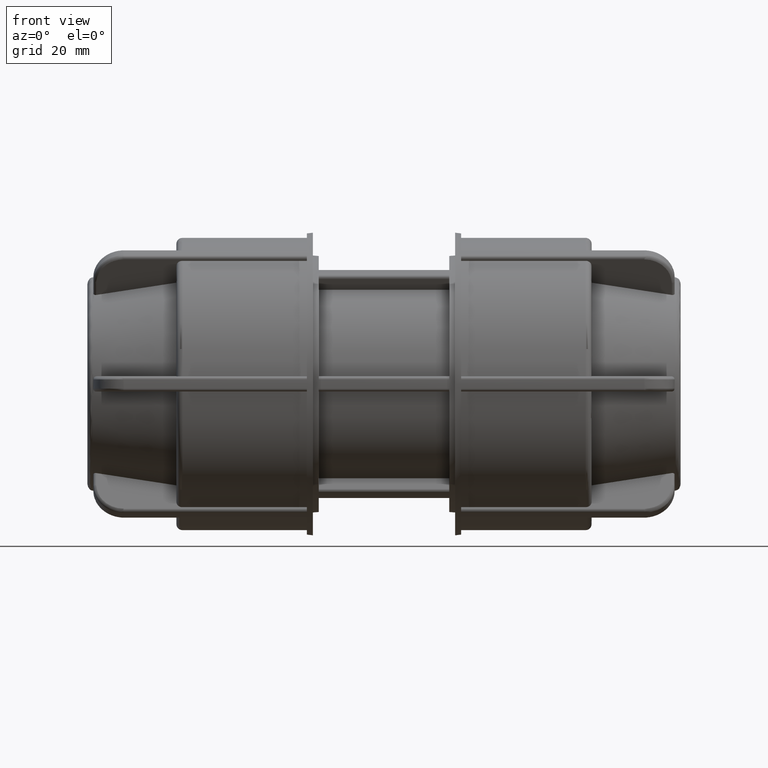
[diagram: clean part render]
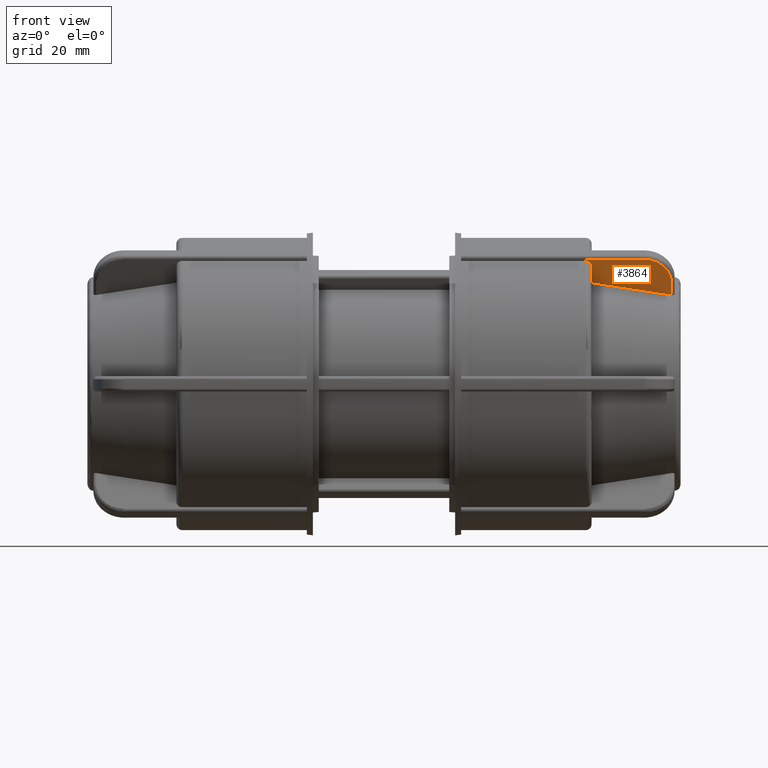
[diagram: same view with one face highlighted and labeled with its STEP entity id]
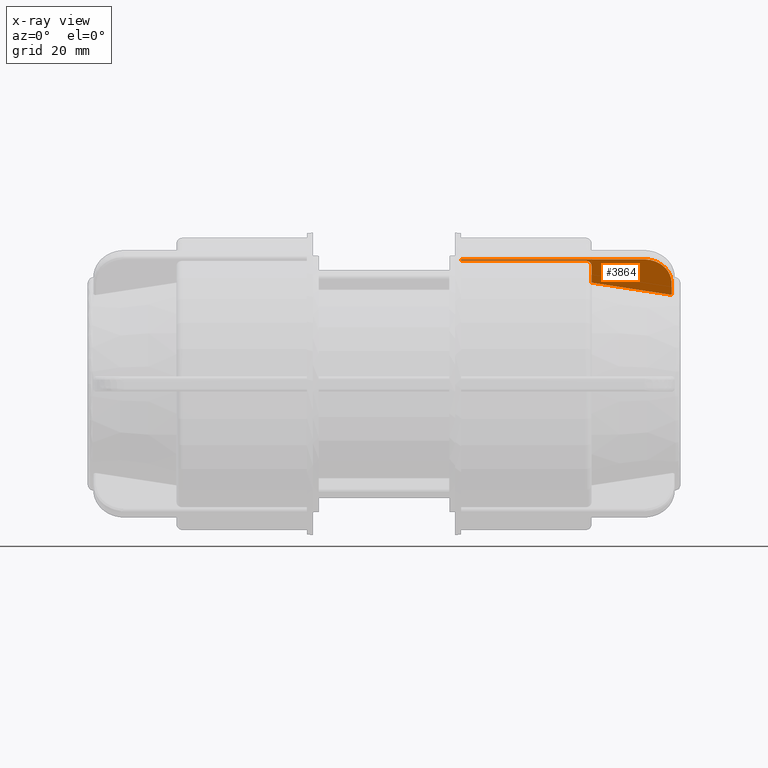
[diagram: x-ray of the same camera — body ghosted, the highlighted face saturated]
A machine part, front view. The second image highlights one B-rep face of the part: STEP entity #3864.
The next image is the same camera in x-ray: the body ghosted, the highlighted face saturated — about 0% of this face is hidden behind the body in this view.
In plain terms, the highlighted planar face has unit normal (0, -0.866, -0.5).
Its self-contained STEP definition (entity closure, byte-faithful):
#58=(
BOUNDED_CURVE()
B_SPLINE_CURVE(2,(#7621,#7622,#7623),.UNSPECIFIED.,.F.,.F.)
B_SPLINE_CURVE_WITH_KNOTS((3,3),(0.0540233314289232,1.39325814723339),
 .UNSPECIFIED.)
CURVE()
GEOMETRIC_REPRESENTATION_ITEM()
RATIONAL_B_SPLINE_CURVE((1.00015410121941,1.0019871301321,1.))
REPRESENTATION_ITEM('')
);
#140=B_SPLINE_CURVE_WITH_KNOTS('',3,(#7581,#7582,#7583,#7584,#7585,#7586),
 .UNSPECIFIED.,.F.,.F.,(4,1,1,4),(0.,0.303017893452681,0.505029822421135,
0.707041751389589),.UNSPECIFIED.);
#142=B_SPLINE_CURVE_WITH_KNOTS('',3,(#7609,#7610,#7611,#7612,#7613,#7614,
#7615,#7616,#7617,#7618),.UNSPECIFIED.,.F.,.F.,(4,2,2,2,4),(-0.145235650375423,
-0.108883881564918,-0.0725602245326114,-0.0362677716642137,0.),
 .UNSPECIFIED.);
#278=PLANE('',#4266);
#478=FACE_OUTER_BOUND('',#728,.T.);
#728=EDGE_LOOP('',(#3304,#3305,#3306,#3307,#3308,#3309,#3310,#3311));
#978=LINE('',#7548,#1206);
#979=LINE('',#7602,#1207);
#980=LINE('',#7605,#1208);
#981=LINE('',#7607,#1209);
#982=LINE('',#7620,#1210);
#1206=VECTOR('',#5234,30.28);
#1207=VECTOR('',#5239,2.26901014006996);
#1208=VECTOR('',#5242,0.270755640868974);
#1209=VECTOR('',#5243,20.58);
#1210=VECTOR('',#5244,3.18331717979064);
#1791=VERTEX_POINT('',#7544);
#1792=VERTEX_POINT('',#7546);
#1793=VERTEX_POINT('',#7579);
#1794=VERTEX_POINT('',#7588);
#1795=VERTEX_POINT('',#7604);
#1796=VERTEX_POINT('',#7606);
#1797=VERTEX_POINT('',#7608);
#1798=VERTEX_POINT('',#7619);
#2323=EDGE_CURVE('',#1792,#1791,#978,.T.);
#2325=EDGE_CURVE('',#1791,#1793,#140,.T.);
#2327=EDGE_CURVE('',#1793,#1794,#979,.T.);
#2328=EDGE_CURVE('',#1795,#1792,#980,.T.);
#2329=EDGE_CURVE('',#1796,#1795,#981,.T.);
#2330=EDGE_CURVE('',#1797,#1796,#142,.T.);
#2331=EDGE_CURVE('',#1798,#1797,#982,.T.);
#2332=EDGE_CURVE('',#1794,#1798,#58,.T.);
#3304=ORIENTED_EDGE('',*,*,#2327,.F.);
#3305=ORIENTED_EDGE('',*,*,#2325,.F.);
#3306=ORIENTED_EDGE('',*,*,#2323,.F.);
#3307=ORIENTED_EDGE('',*,*,#2328,.F.);
#3308=ORIENTED_EDGE('',*,*,#2329,.F.);
#3309=ORIENTED_EDGE('',*,*,#2330,.F.);
#3310=ORIENTED_EDGE('',*,*,#2331,.F.);
#3311=ORIENTED_EDGE('',*,*,#2332,.F.);
#3864=ADVANCED_FACE('',(#478),#278,.T.);
#4266=AXIS2_PLACEMENT_3D('',#7603,#5240,#5241);
#5234=DIRECTION('',(1.,4.92891144070721E-16,1.15570736167159E-16));
#5239=DIRECTION('',(-5.33262209774072E-16,0.5,-0.866025403784439));
#5240=DIRECTION('center_axis',(4.846416201492E-16,-0.866025403784439,-0.5));
#5241=DIRECTION('ref_axis',(-5.32907051820075E-16,0.5,-0.866025403784439));
#5242=DIRECTION('',(1.53080849893419E-16,-0.5,0.866025403784439));
#5243=DIRECTION('',(-1.,-3.06161699786838E-16,0.));
#5244=DIRECTION('',(1.53080849893419E-16,-0.5,0.866025403784439));
#7544=CARTESIAN_POINT('',(43.02,-13.3267906134773,20.5826784443748));
#7546=CARTESIAN_POINT('',(12.74,-13.3267906134774,20.5826784443748));
#7548=CARTESIAN_POINT('',(12.25,-13.3267906134774,20.5826784443748));
#7579=CARTESIAN_POINT('',(47.52,-11.0754980310671,16.6833253089373));
#7581=CARTESIAN_POINT('Ctrl Pts',(43.02,-13.3267906134773,20.5826784443748));
#7582=CARTESIAN_POINT('Ctrl Pts',(44.0300596448423,-13.3267906134773,20.5826784443748));
#7583=CARTESIAN_POINT('Ctrl Pts',(45.7073058317858,-13.0312565647389,20.0707984565934));
#7584=CARTESIAN_POINT('Ctrl Pts',(47.2122782428397,-12.0843001325208,18.4306218034375));
#7585=CARTESIAN_POINT('Ctrl Pts',(47.52,-11.4121845793479,17.2664835167846));
#7586=CARTESIAN_POINT('Ctrl Pts',(47.52,-11.0754980310671,16.6833253089373));
#7588=CARTESIAN_POINT('',(47.52,-9.94099296103212,14.7183048861922));
#7602=CARTESIAN_POINT('',(47.52,-11.5890501097804,17.5728236016013));
#7603=CARTESIAN_POINT('Origin',(11.76,-13.5668969768794,20.9985548650078));
#7604=CARTESIAN_POINT('',(12.74,-13.1914127930429,20.3481971811643));
#7605=CARTESIAN_POINT('',(12.74,-4.29346436580499,4.93649842206072));
#7606=CARTESIAN_POINT('',(33.32,-13.1914127930429,20.3481971811643));
#7607=CARTESIAN_POINT('',(23.52,-13.1914127930429,20.3481971811643));
#7608=CARTESIAN_POINT('',(34.3,-12.7007329924437,19.4983148362788));
#7609=CARTESIAN_POINT('Ctrl Pts',(34.3,-12.7007329924437,19.4983148362788));
#7610=CARTESIAN_POINT('Ctrl Pts',(34.3,-12.7613192737945,19.6032533538202));
#7611=CARTESIAN_POINT('Ctrl Pts',(34.2716620753717,-12.8326287744908,19.7267650320884));
#7612=CARTESIAN_POINT('Ctrl Pts',(34.1790202338695,-12.9445475390493,19.9206140186241));
#7613=CARTESIAN_POINT('Ctrl Pts',(34.0983566431803,-13.0049708667058,20.0252702920876));
#7614=CARTESIAN_POINT('Ctrl Pts',(33.9272688428285,-13.0905847646638,20.1735579131849));
#7615=CARTESIAN_POINT('Ctrl Pts',(33.8066019740168,-13.1309387636431,20.2434530897054));
#7616=CARTESIAN_POINT('Ctrl Pts',(33.5831708967544,-13.1772485903668,20.3236640624807));
#7617=CARTESIAN_POINT('Ctrl Pts',(33.4408925722141,-13.1914127930429,20.3481971811643));
#7618=CARTESIAN_POINT('Ctrl Pts',(33.32,-13.1914127930429,20.3481971811643));
#7619=CARTESIAN_POINT('',(34.3,-11.1090744025484,16.7414812902767));
#7620=CARTESIAN_POINT('',(34.3,-4.81321353875317,5.8367303967989));
#7621=CARTESIAN_POINT('Ctrl Pts',(47.5200000000007,-9.94099296103206,14.7183048861922));
#7622=CARTESIAN_POINT('Ctrl Pts',(41.3188437733453,-10.4890675882595,15.6675979868895));
#7623=CARTESIAN_POINT('Ctrl Pts',(34.3,-11.1090744025484,16.7414812902767));